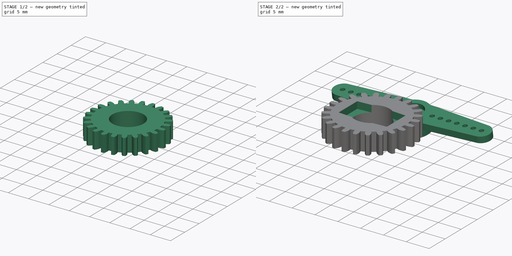
[diagram: build sequence overview — one tinted view per stage of 2, left to right]
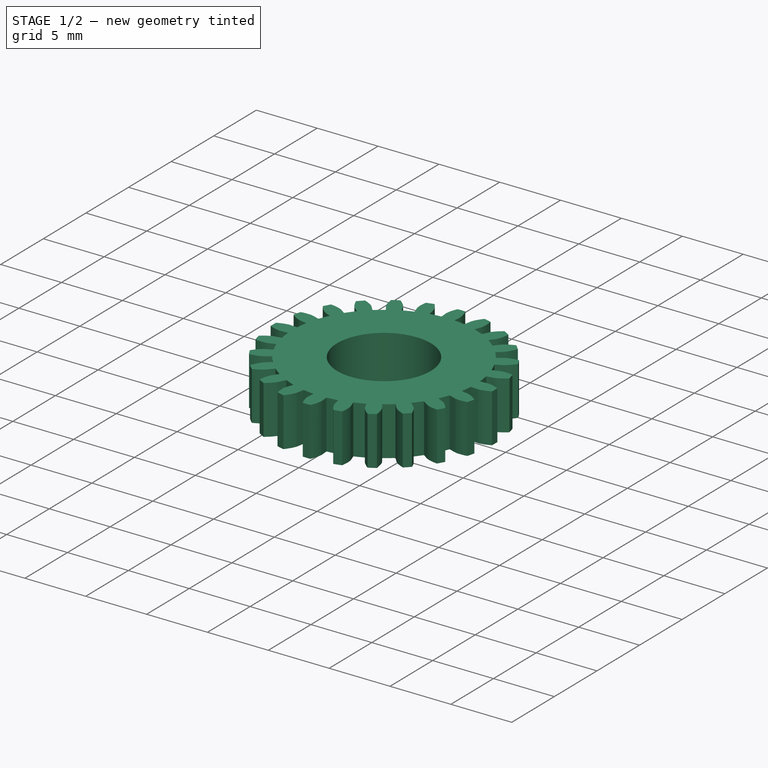
[diagram: stage 1 of 2 — iso view after this stage's code; geometry added in this stage tinted green]
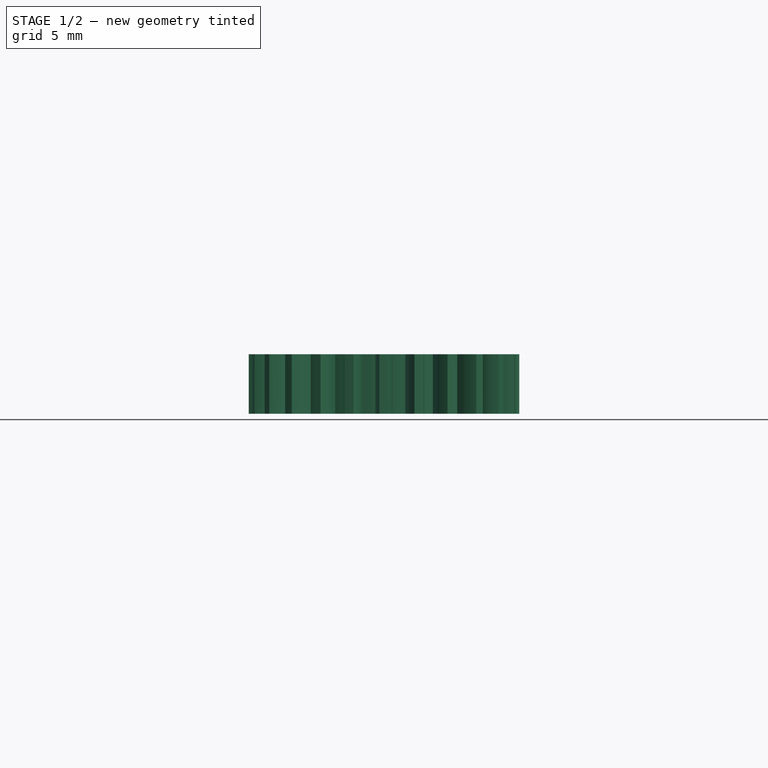
[diagram: stage 1 of 2 — front view after this stage's code; geometry added in this stage tinted green]
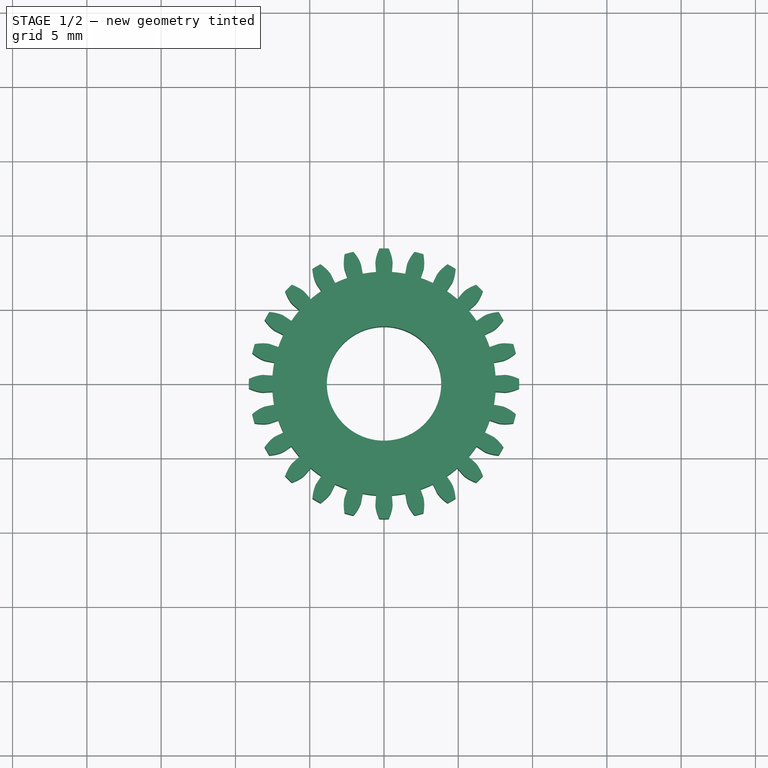
[diagram: stage 1 of 2 — top view after this stage's code; geometry added in this stage tinted green]
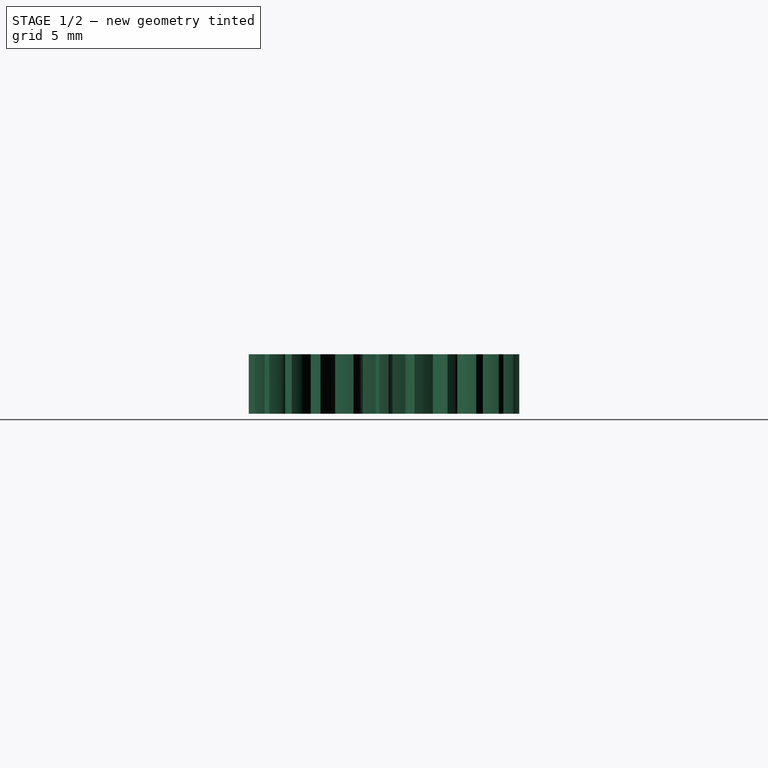
[diagram: stage 1 of 2 — right view after this stage's code; geometry added in this stage tinted green]
FCSTD DOCUMENT  (FreeCAD 0.21R33668 +26 (Git))
Label: gripper_servo_Gear
License: All rights reserved
LicenseURL: https://en.wikipedia.org/wiki/All_rights_reserved
objects: App::FeaturePython×6, Sketcher::SketchObject×2, PartDesign::Pocket×2, Part::Feature×1, PartDesign::FeatureBase×1, PartDesign::Body×1, Part::FeaturePython×1
note: 10 computed .brp shape members not serialized (recipe doc carries the construction recipe); baked Part::Feature solids carry a one-line shape summary decoded from their .brp

FEATURE [Part::Feature] Part__Feature  label="gripper_spur_gear v1"
  shape: bbox 18.2 x 18.2 x 4.001 mm, 149 faces (baked)
FEATURE [PartDesign::FeatureBase] BaseFeature
  BaseFeature = -> Part__Feature
FEATURE [Sketcher::SketchObject] Sketch
  ExternalGeometry = -> [BaseFeature]
  FullyConstrained = true
  MapMode = 5
  Placement = pos=(0,0,4) rot=(0,0,1;0rad)
  Support = -> [BaseFeature]
  sketch-geometry (1):
    g0: Circle CenterX=0 CenterY=0 CenterZ=0 NormalX=0 NormalY=0 NormalZ=1 AngleXU=0 Radius=3.85
  constraints (3):
    c: Diameter(g-3) = 5
    c: Coincident(g0,g-3)
    c: Diameter(g0) = 7.7
FEATURE [PartDesign::Pocket] Pocket
  BaseFeature = -> BaseFeature
  Direction = (0,0,-1)
  Length = 4
  Length2 = 5
  Profile = -> Sketch
  ReferenceAxis = -> Sketch [N_Axis]
  Type = 0
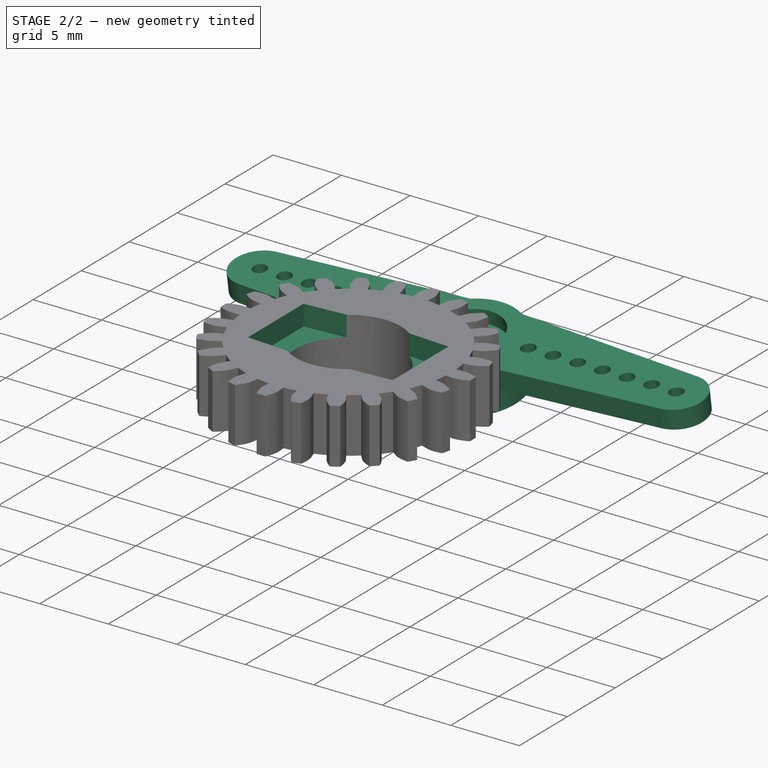
[diagram: stage 2 of 2 — iso view after this stage's code; geometry added in this stage tinted green]
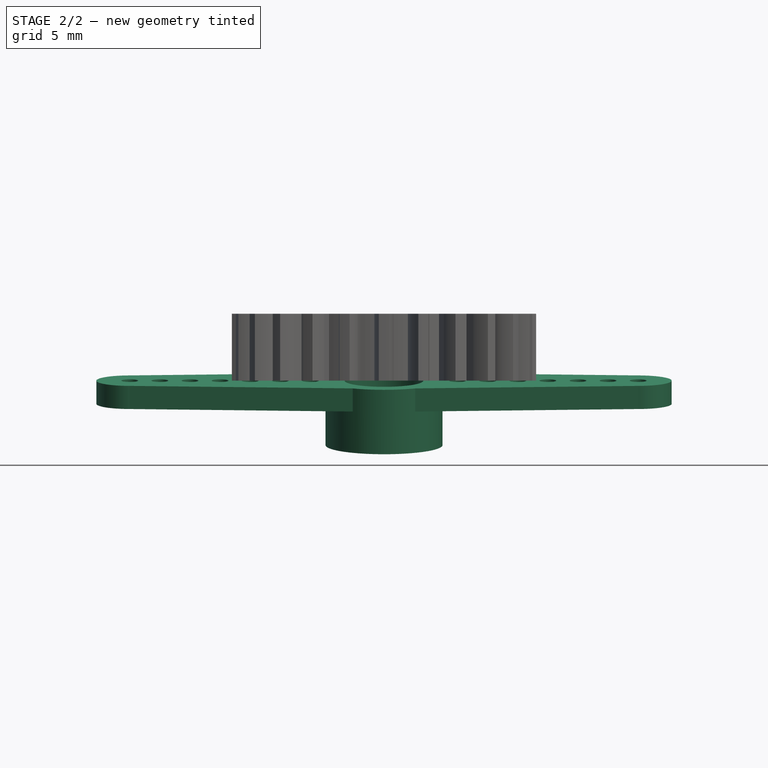
[diagram: stage 2 of 2 — front view after this stage's code; geometry added in this stage tinted green]
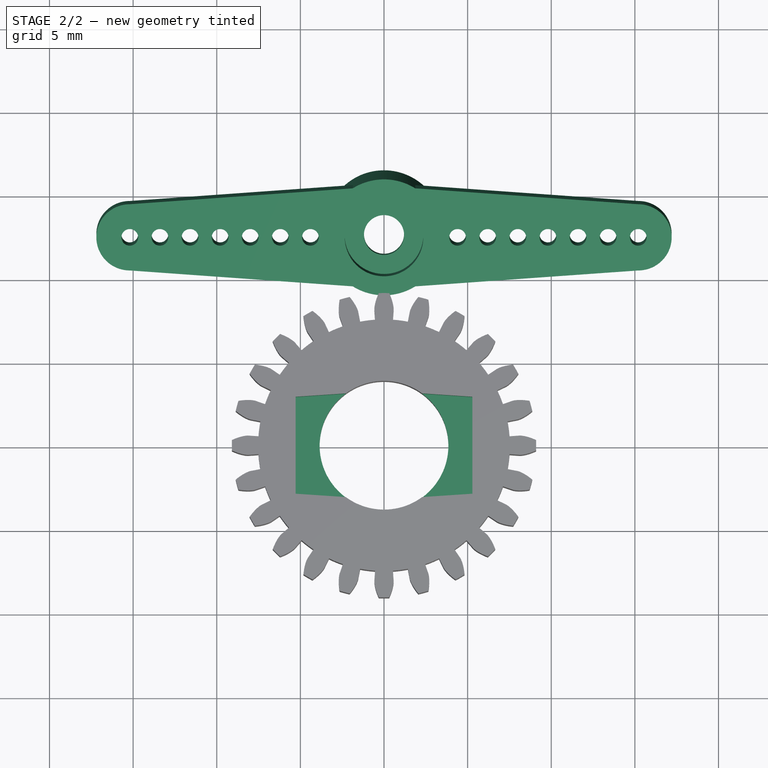
[diagram: stage 2 of 2 — top view after this stage's code; geometry added in this stage tinted green]
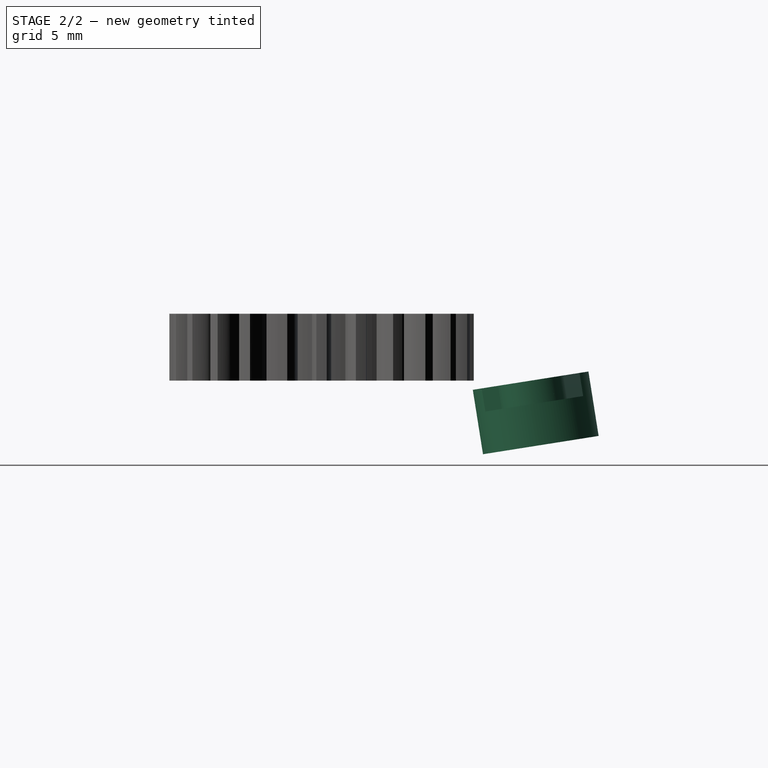
[diagram: stage 2 of 2 — right view after this stage's code; geometry added in this stage tinted green]
FEATURE [Sketcher::SketchObject] Sketch001
  ExternalGeometry = -> [Pocket]
  FullyConstrained = true
  MapMode = 5
  Placement = pos=(0,0,4) rot=(0,0,1;0rad)
  Support = -> [Pocket]
  sketch-geometry (8):
    g0: LineSegment StartX=-5.28309 StartY=2.9 StartZ=0 EndX=-2.28309 EndY=3.1 EndZ=0
    g1: LineSegment StartX=-2.28309 StartY=3.1 StartZ=0 EndX=-2.28309 EndY=-3.1 EndZ=0
    g2: LineSegment StartX=-2.28309 StartY=-3.1 StartZ=0 EndX=-5.28309 EndY=-2.9 EndZ=0
    g3: LineSegment StartX=-5.28309 StartY=-2.9 StartZ=0 EndX=-5.28309 EndY=2.9 EndZ=0
    g4: LineSegment StartX=2.28309 StartY=3.1 StartZ=0 EndX=2.28309 EndY=-3.1 EndZ=0
    g5: LineSegment StartX=2.28309 StartY=-3.1 StartZ=0 EndX=5.28309 EndY=-2.9 EndZ=0
    g6: LineSegment StartX=5.28309 StartY=-2.9 StartZ=0 EndX=5.28309 EndY=2.9 EndZ=0
    g7: LineSegment StartX=5.28309 StartY=2.9 StartZ=0 EndX=2.28309 EndY=3.1 EndZ=0
  constraints (24):
    c: Coincident(g0,g1)
    c: Vertical(g1)
    c: Coincident(g1,g2)
    c: Coincident(g2,g3)
    c: Coincident(g3,g0)
    c: Vertical(g4)
    c: Coincident(g4,g5)
    c: Coincident(g5,g6)
    c: Vertical(g6)
    c: Coincident(g6,g7)
    c: Coincident(g7,g4)
    c: Horizontal(g0,g4)
    c: Horizontal(g1,g4)
    c: DistanceY(g1,g1) = 6.2
    c: PointOnObject(g0,g-3)
    c: PointOnObject(g1,g-3)
    c: Vertical(g3)
    c: Horizontal(g2,g5)
    c: Horizontal(g6,g0)
    c: DistanceX(g0,g0) = 3
    c: DistanceY(g0,g0) = 0.2
    c: DistanceY(g1,g2) = 0.2
    c: DistanceX(g4,g6) = 3
    c: PointOnObject(g4,g-3)
FEATURE [PartDesign::Pocket] Pocket001
  BaseFeature = -> Pocket
  Direction = (0,0,-1)
  Length = 1.5
  Length2 = 5
  Placement = pos=(0,13.1101,-3.85199) rot=(1,0,0;0.15708rad)
  Profile = -> Sketch001
  ReferenceAxis = -> Sketch001 [N_Axis]
  Type = 0
FEATURE [PartDesign::Body] Body
  BaseFeature = -> Part__Feature
  Group = -> [BaseFeature,Sketch,Pocket,Sketch001,Pocket001]
  Origin = -> Origin
  Tip = -> Pocket001
FEATURE [Part::FeaturePython] b_microservoArm_A3_001_  label="microservoArm_A3_001"  # a2plus imported part (geometry in sourceFile) (typed FeaturePython)
  Placement = pos=(0,12.5,0) rot=(1,0,0;4.86947rad)
  a2p_Version = 0.4.60n
  fixedPosition = true
  objectType = a2pPart
  sourceFile = .\microservoArm_A2.step
  subassemblyImport = false
  timeLastImport = 1.72499e+09
  updateColors = true
FEATURE [App::FeaturePython] planesParallel_001  label="planesParallel_001__Pocket001"  # a2plus constraint (typed FeaturePython)
  Object1 = b_microservoArm_A3_001_
  Object2 = Pocket001
  ParentTreeObject = -> b_microservoArm_A3_001_
  SubElement1 = Face20
  SubElement2 = Face148
  Suppressed = false
  Type = planesParallel
  directionConstraint = 1
FEATURE [App::FeaturePython] planesParallel_001_mirror  label="planesParallel_001__microservoArm_A3_001"  # a2plus constraint (typed FeaturePython)
  Object1 = b_microservoArm_A3_001_
  Object2 = Pocket001
  ParentTreeObject = -> Pocket001
  SubElement1 = Face20
  SubElement2 = Face148
  Suppressed = false
  Type = planesParallel
  directionConstraint = 1
FEATURE [App::FeaturePython] planeCoincident_001  label="planeCoincident_001__Pocket001"  # a2plus constraint (typed FeaturePython)
  Object1 = b_microservoArm_A3_001_
  Object2 = Pocket001
  ParentTreeObject = -> b_microservoArm_A3_001_
  SubElement1 = Face20
  SubElement2 = Face148
  Suppressed = false
  Type = plane
  directionConstraint = 1
  offset = 0
FEATURE [App::FeaturePython] planeCoincident_001_mirror  label="planeCoincident_001__microservoArm_A3_001"  # a2plus constraint (typed FeaturePython)
  Object1 = b_microservoArm_A3_001_
  Object2 = Pocket001
  ParentTreeObject = -> Pocket001
  SubElement1 = Face20
  SubElement2 = Face148
  Suppressed = false
  Type = plane
  directionConstraint = 1
  offset = 0
FEATURE [App::FeaturePython] axisCoincident_001  label="axisCoincident_001__Pocket001"  # a2plus constraint (typed FeaturePython)
  Object1 = b_microservoArm_A3_001_
  Object2 = Pocket001
  ParentTreeObject = -> b_microservoArm_A3_001_
  SubElement1 = Face1
  SubElement2 = Face146
  Suppressed = false
  Type = axial
  directionConstraint = 1
  lockRotation = false
FEATURE [App::FeaturePython] axisCoincident_001_mirror  label="axisCoincident_001__microservoArm_A3_001"  # a2plus constraint (typed FeaturePython)
  Object1 = b_microservoArm_A3_001_
  Object2 = Pocket001
  ParentTreeObject = -> Pocket001
  SubElement1 = Face1
  SubElement2 = Face146
  Suppressed = false
  Type = axial
  directionConstraint = 1
  lockRotation = false
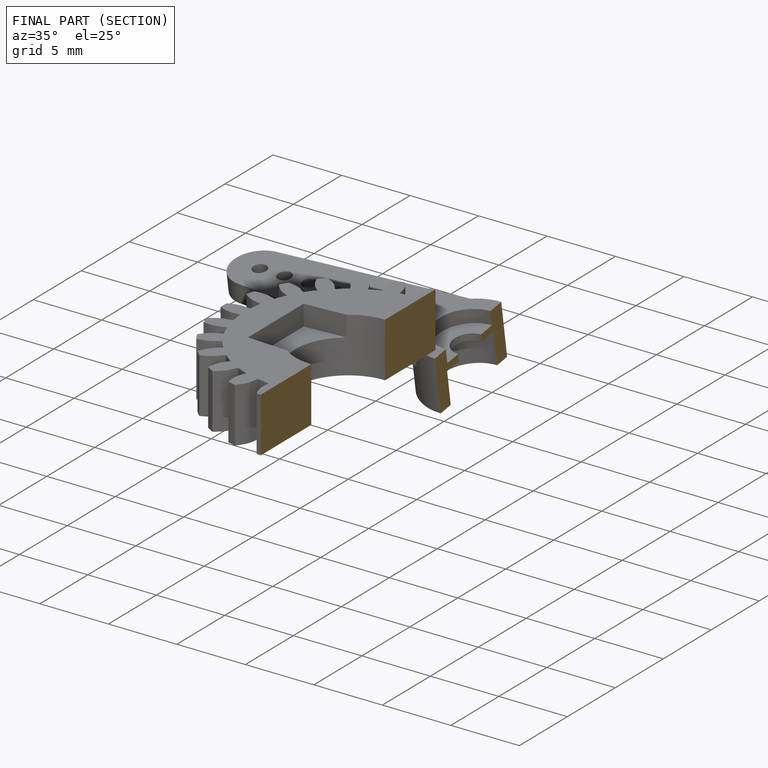
[diagram: finished part — half-section view (interior)]
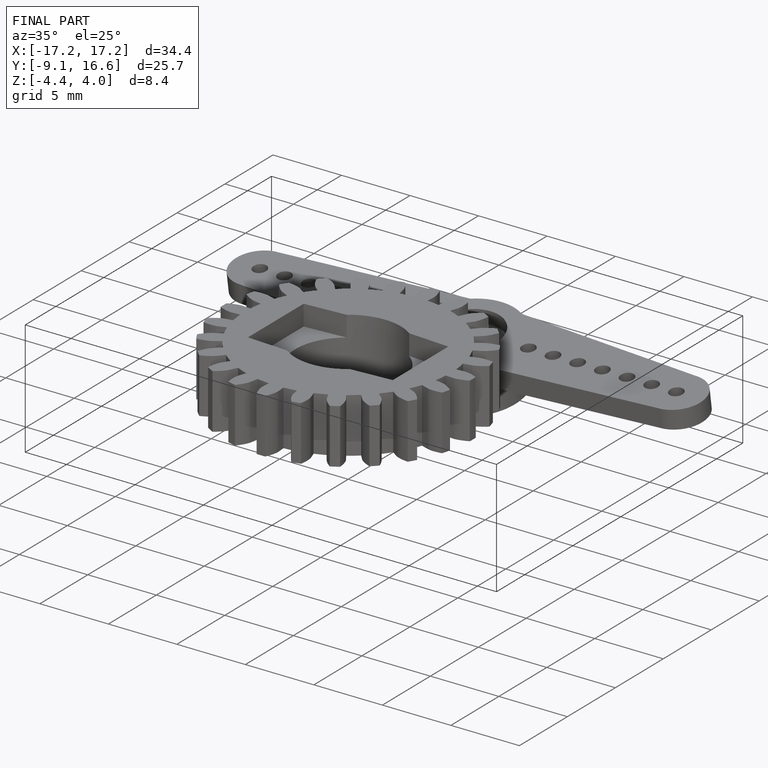
[diagram: finished part — iso view with bounding-box wireframe]
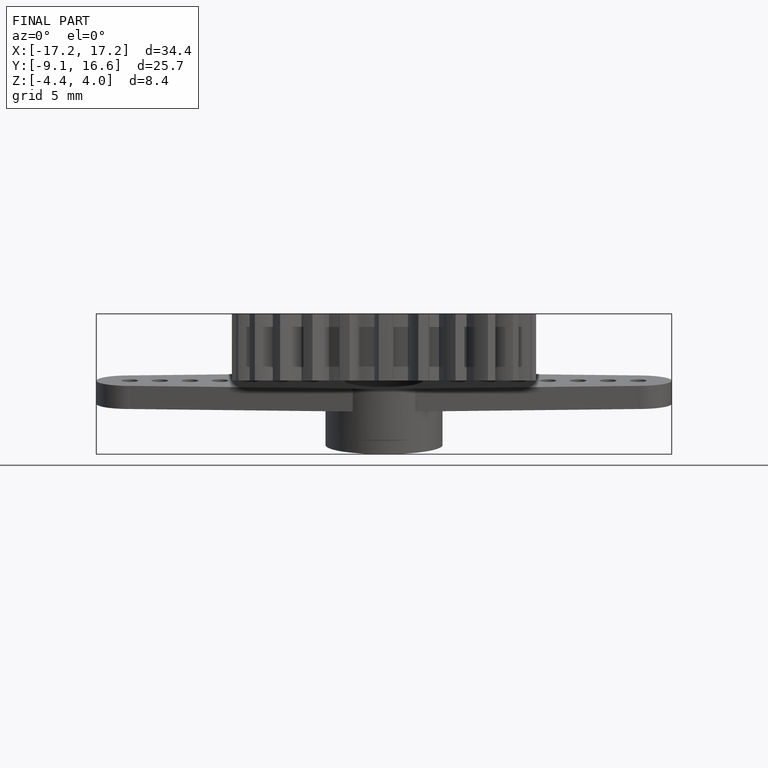
[diagram: finished part — front view with bounding-box wireframe]
